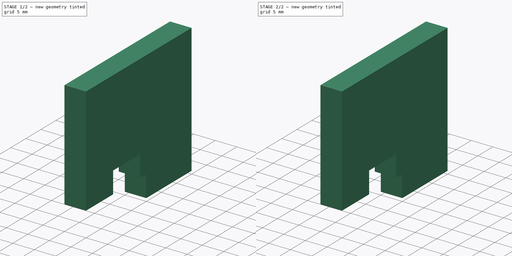
[diagram: build sequence overview — one tinted view per stage of 2, left to right]
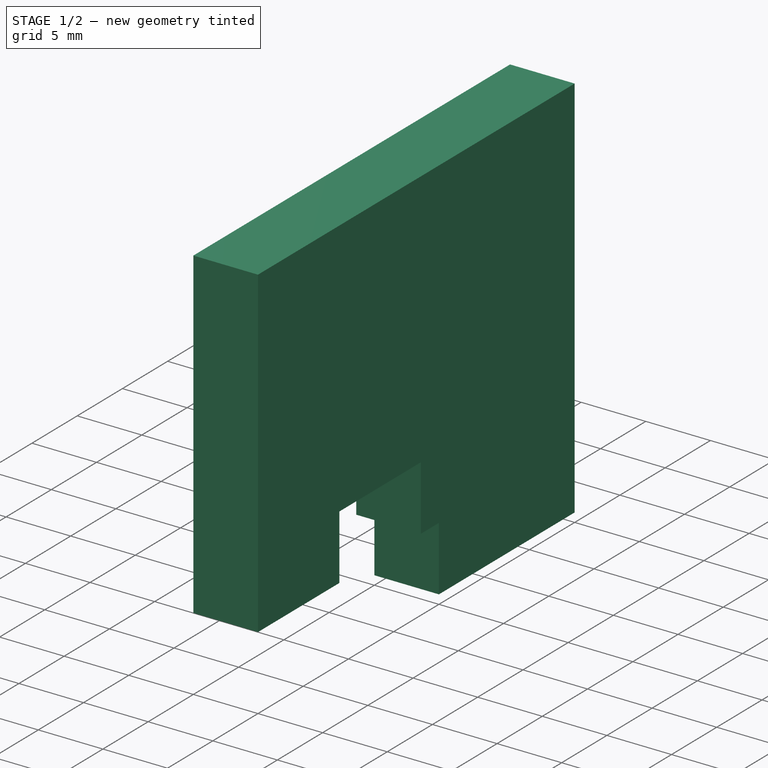
[diagram: stage 1 of 2 — iso view after this stage's code; geometry added in this stage tinted green]
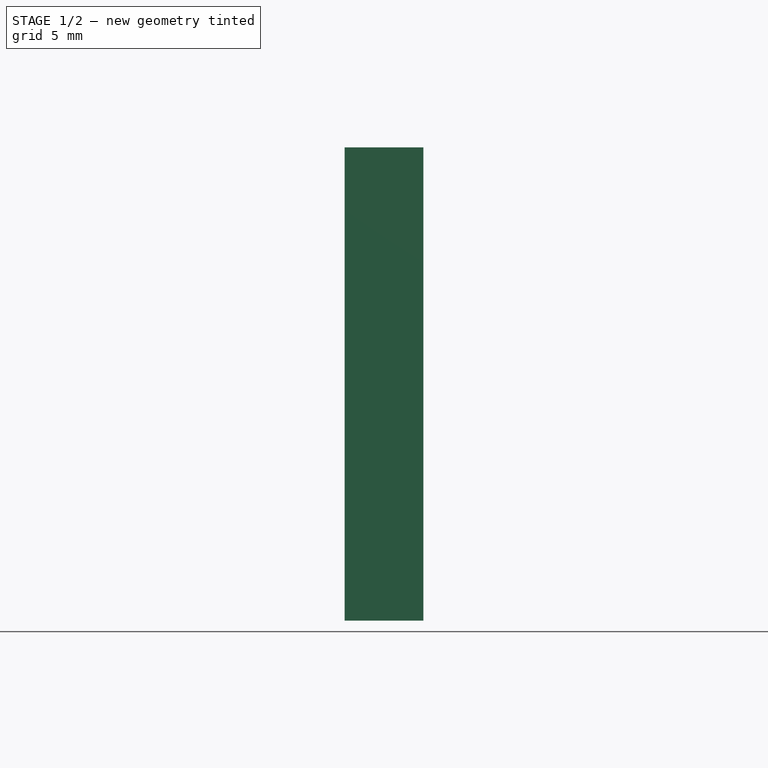
[diagram: stage 1 of 2 — front view after this stage's code; geometry added in this stage tinted green]
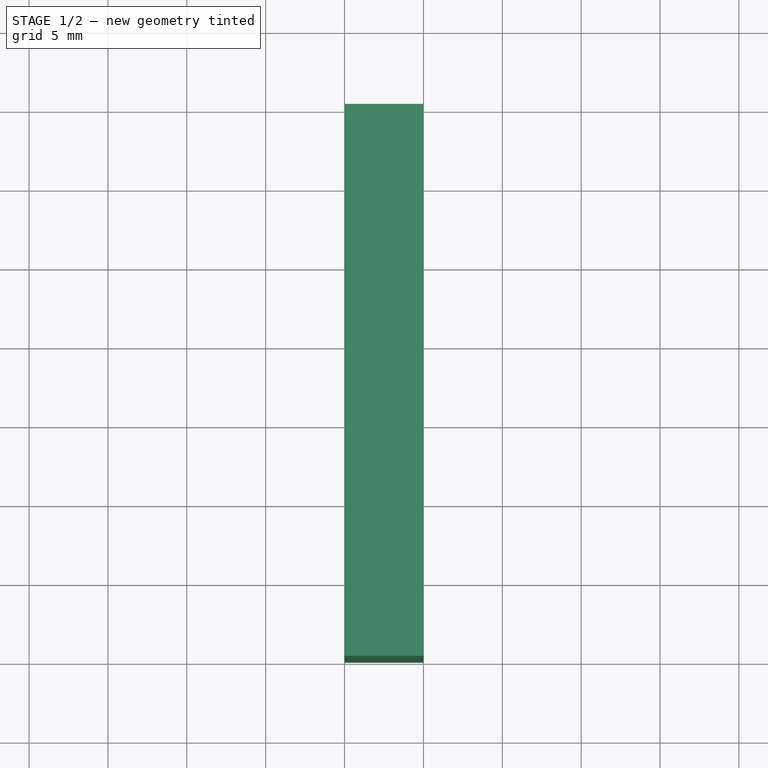
[diagram: stage 1 of 2 — top view after this stage's code; geometry added in this stage tinted green]
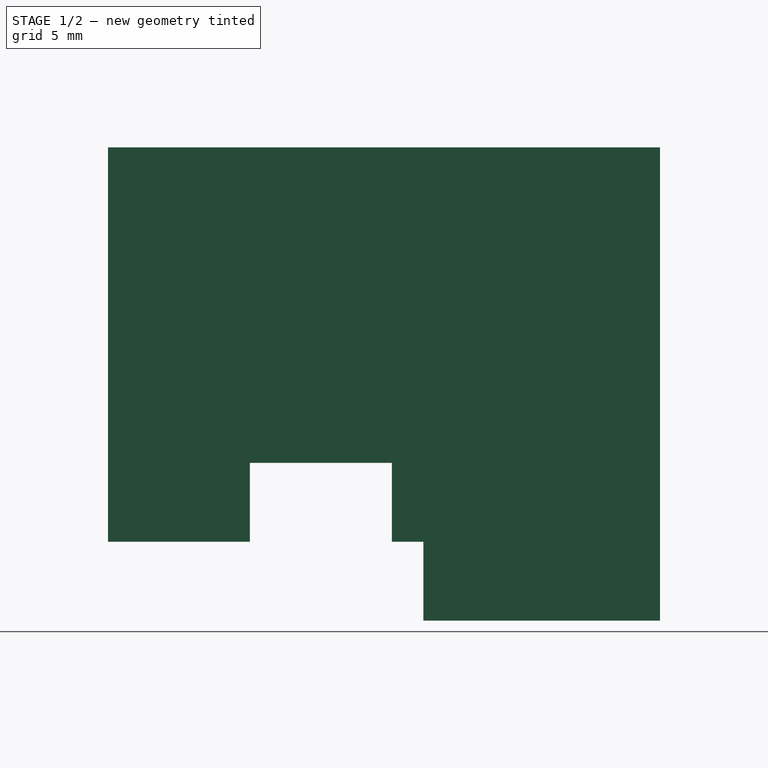
[diagram: stage 1 of 2 — right view after this stage's code; geometry added in this stage tinted green]
FCSTD DOCUMENT  (FreeCAD 0.19R24291 (Git))
Label: drzak_deklinacni_potenciometr
License: All rights reserved
LicenseURL: http://en.wikipedia.org/wiki/All_rights_reserved
objects: Sketcher::SketchObject×6, Part::Extrusion×2, Part::Cut×1, PartDesign::FeatureBase×1, PartDesign::ShapeBinder×1, PartDesign::Body×1, App::Part×1
note: 12 computed .brp shape members not serialized (recipe doc carries the construction recipe); baked Part::Feature solids carry a one-line shape summary decoded from their .brp

FEATURE [Sketcher::SketchObject] Sketch
  FullyConstrained = true
  MapMode = 5
  Support = -> [XY_Plane]
  sketch-geometry (6):
    g0: LineSegment StartX=0 StartY=0 StartZ=0 EndX=30 EndY=0 EndZ=0
    g1: LineSegment StartX=30 StartY=0 StartZ=0 EndX=30 EndY=20 EndZ=0
    g2: LineSegment StartX=30 StartY=20 StartZ=0 EndX=0 EndY=20 EndZ=0
    g3: LineSegment StartX=0 StartY=20 StartZ=0 EndX=0 EndY=0 EndZ=0
    g4: Circle CenterX=5 CenterY=14 CenterZ=0 NormalX=0 NormalY=0 NormalZ=1 AngleXU=0 Radius=2.5
    g5: Circle CenterX=25 CenterY=14 CenterZ=0 NormalX=0 NormalY=0 NormalZ=1 AngleXU=0 Radius=2.5
  constraints (17):
    c: Coincident(g0,g1)
    c: Coincident(g1,g2)
    c: Coincident(g2,g3)
    c: Coincident(g3,g0)
    c: Horizontal(g0)
    c: Horizontal(g2)
    c: Vertical(g1)
    c: Vertical(g3)
    c: Coincident(g0,g-1)
    c: DistanceX(g2,g2) = 30
    c: DistanceY(g1,g1) = 20
    c: Radius(g4) = 2.5
    c: Radius(g5) = 2.5
    c: DistanceX(g4,g5) = 20
    c: DistanceX(g2,g4) = 5
    c: DistanceY(g5,g1) = 6
    c: DistanceY(g4,g2) = 6
FEATURE [Part::Extrusion] Extrude
  Base = -> Sketch
  Dir = (0,0,1)
  DirMode = 2
  FaceMakerClass = Part::FaceMakerBullseye
  LengthFwd = 5
  LengthRev = 0
  Solid = true
  Symmetric = false
FEATURE [Sketcher::SketchObject] Sketch001
  FullyConstrained = false
  MapMode = 5
  Placement = pos=(0,0,5) rot=(0,0,1;0rad)
  Support = -> [Extrude]
  sketch-geometry (7):
    g0: LineSegment StartX=20.9635 StartY=13.8403 StartZ=0 EndX=22.7762 EndY=10.2746 EndZ=0
    g1: LineSegment StartX=22.7762 StartY=10.2746 StartZ=0 EndX=26.7705 EndY=10.0617 EndZ=0
    g2: LineSegment StartX=26.7705 StartY=10.0617 StartZ=0 EndX=28.9521 EndY=13.4144 EndZ=0
    g3: LineSegment StartX=28.9521 StartY=13.4144 StartZ=0 EndX=27.1394 EndY=16.98 EndZ=0
    g4: LineSegment StartX=27.1394 StartY=16.98 StartZ=0 EndX=23.145 EndY=17.193 EndZ=0
    g5: LineSegment StartX=23.145 StartY=17.193 StartZ=0 EndX=20.9635 EndY=13.8403 EndZ=0
    g6: Circle CenterX=24.9578 CenterY=13.6273 CenterZ=0 NormalX=0 NormalY=0 NormalZ=1 AngleXU=0 Radius=4
  constraints (14):
    c: Coincident(g0,g1)
    c: Coincident(g1,g2)
    c: Coincident(g2,g3)
    c: Coincident(g3,g4)
    c: Coincident(g4,g5)
    c: Coincident(g5,g0)
    c: Equal(g0, g1-g5) x5
    c: PointOnObject(g0,g6)
    c: PointOnObject(g1,g6)
    c: PointOnObject(g2,g6)
    c: PointOnObject(g3,g6)
    c: PointOnObject(g4,g6)
    c: PointOnObject(g5,g6)
    c: Radius(g6) = 4
FEATURE [Sketcher::SketchObject] Sketch002
  FullyConstrained = true
  MapMode = 5
  Placement = pos=(0,0,5) rot=(0,0,1;0rad)
  Support = -> [Extrude]
FEATURE [Sketcher::SketchObject] Sketch003  label="SchKolmo"
  ExternalGeometry = -> [Extrude]
  FullyConstrained = false
  MapMode = 5
  Placement = pos=(30,0,0) rot=(0.57735,0.57735,0.57735;2.0944rad)
  Support = -> [Extrude]
  sketch-geometry (11):
    g0: LineSegment StartX=0 StartY=5 StartZ=0 EndX=9 EndY=5 EndZ=0
    g1: LineSegment StartX=9 StartY=5 StartZ=0 EndX=9 EndY=10 EndZ=0
    g2: LineSegment StartX=0 StartY=30 StartZ=0 EndX=0 EndY=5 EndZ=0
    g3: LineSegment StartX=18 StartY=10 StartZ=0 EndX=9 EndY=10 EndZ=0
    g4: LineSegment StartX=35 StartY=30 StartZ=0 EndX=35 EndY=5 EndZ=0
    g5: LineSegment StartX=18 StartY=5 StartZ=0 EndX=18 EndY=10 EndZ=0
    g6: LineSegment StartX=0 StartY=30 StartZ=0 EndX=35 EndY=30 EndZ=0
    g7: LineSegment StartX=20 StartY=5 StartZ=0 EndX=20 EndY=0 EndZ=0
    g8: LineSegment StartX=20 StartY=0 StartZ=0 EndX=35 EndY=0 EndZ=0
    g9: LineSegment StartX=35 StartY=0 StartZ=0 EndX=35 EndY=5 EndZ=0
    g10: LineSegment StartX=18 StartY=5 StartZ=0 EndX=20 EndY=5 EndZ=0
  constraints (28):
    c: Coincident(g0,g1)
    c: Coincident(g2,g0)
    c: Horizontal(g0)
    c: Vertical(g1)
    c: Vertical(g2)
    c: Horizontal(g3)
    c: Vertical(g4)
    c: Vertical(g5)
    c: DistanceX(g-1,g0) = 0
    c: DistanceY(g2,g2) = 25
    c: DistanceY(g0,g3) = 5
    c: DistanceY(g5,g5) = 5
    c: Coincident(g3,g5)
    c: Coincident(g6,g2)
    c: Coincident(g6,g4)
    c: Horizontal(g6)
    c: DistanceX(g6,g6) = 35
    c: DistanceY(g-1,g0) = 5
    c: DistanceX(g0,g0) = 9
    c: Coincident(g1,g3)
    c: DistanceX(g3,g3) = 9
    c: Coincident(g7,g8)
    c: Coincident(g8,g9)
    c: Horizontal(g8)
    c: Vertical(g7)
    c: Vertical(g9)
    c: PointOnObject(g7,g-1)
    c: Coincident(g10,g5)
FEATURE [Part::Extrusion] Extrude003
  Base = -> Sketch003
  Dir = (1,0,0)
  DirMode = 2
  FaceMakerClass = Part::FaceMakerBullseye
  LengthFwd = 5
  LengthRev = 0
  Reversed = true
  Solid = true
  Symmetric = false
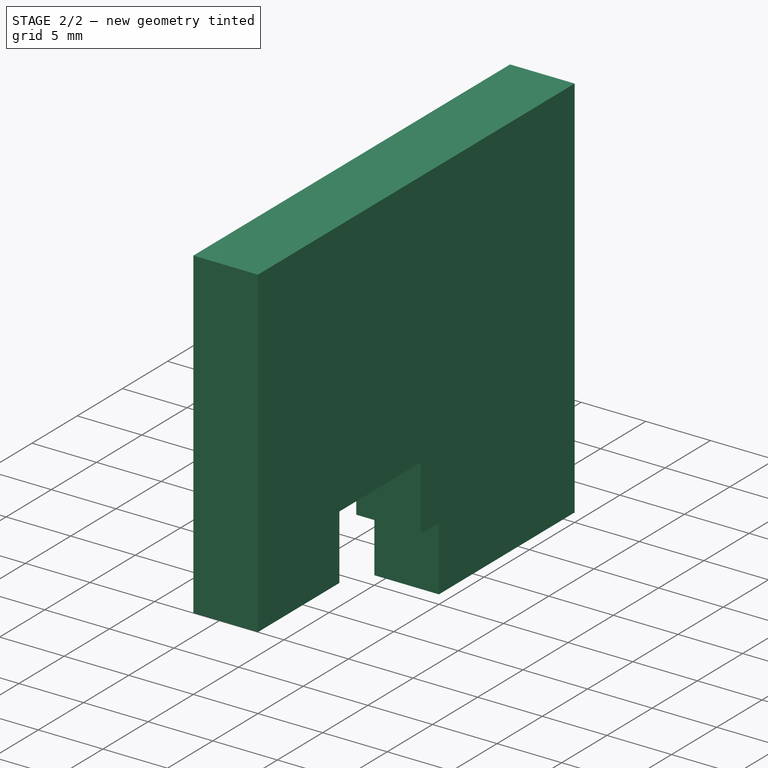
[diagram: stage 2 of 2 — iso view after this stage's code; geometry added in this stage tinted green]
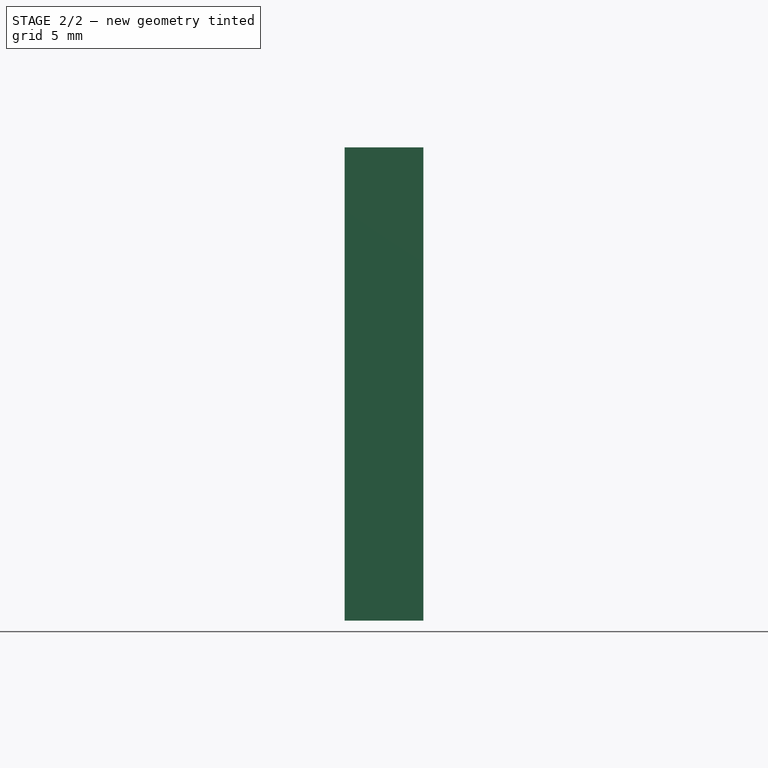
[diagram: stage 2 of 2 — front view after this stage's code; geometry added in this stage tinted green]
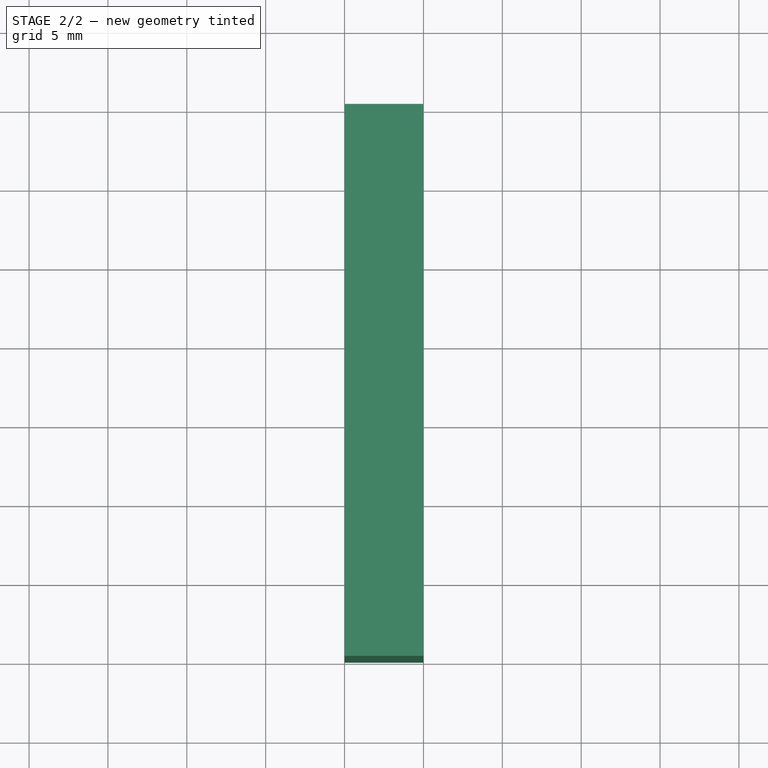
[diagram: stage 2 of 2 — top view after this stage's code; geometry added in this stage tinted green]
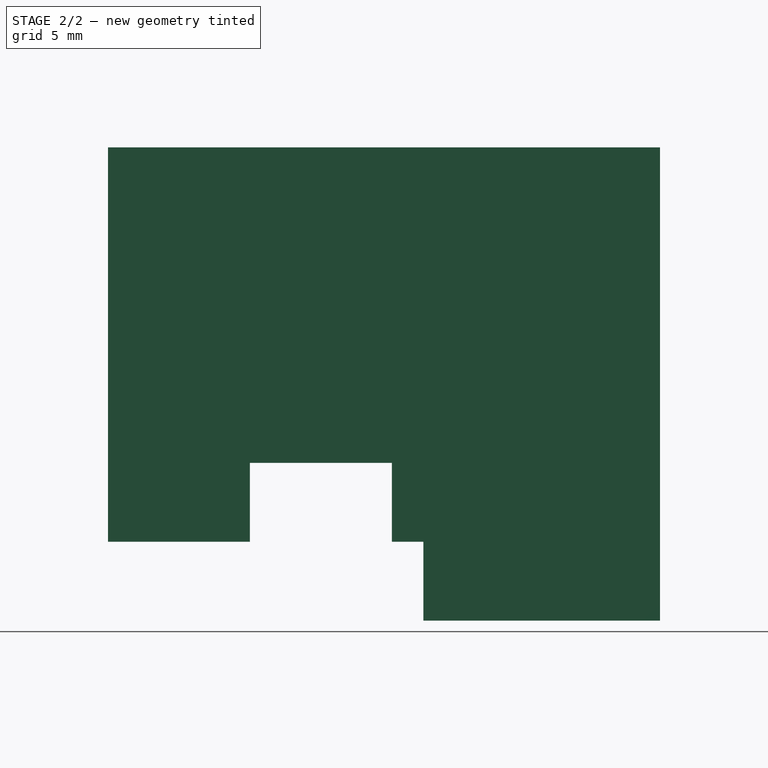
[diagram: stage 2 of 2 — right view after this stage's code; geometry added in this stage tinted green]
FEATURE [Sketcher::SketchObject] Sketch004  label="DiraPoten"
  ExternalGeometry = -> [Extrude]
  FullyConstrained = true
  MapMode = 5
  Placement = pos=(0,35,0) rot=(0,0.707107,0.707107;3.14159rad)
  Support = -> [Extrude003]
  sketch-geometry (1):
    g0: Circle CenterX=-35 CenterY=20 CenterZ=0 NormalX=0 NormalY=0 NormalZ=1 AngleXU=0 Radius=4
  constraints (3):
    c: DistanceY(g-3,g0) = 20
    c: Radius(g0) = 4
    c: DistanceX(g0,g-4) = 7.5
FEATURE [Part::Cut] Cut
  Base = -> Extrude003
FEATURE [PartDesign::FeatureBase] BaseFeature
  BaseFeature = -> Cut
FEATURE [PartDesign::ShapeBinder] CopyCut
  Placement = pos=(-5,0,0) rot=(0,0,1;0rad)
  TraceSupport = false
FEATURE [Sketcher::SketchObject] Sketch005
  FullyConstrained = false
  MapMode = 5
  Placement = pos=(25,0,0) rot=(0.57735,-0.57735,-0.57735;2.0944rad)
  Support = -> [CopyCut]
  sketch-geometry (1):
    g0: Circle CenterX=-26.0763 CenterY=22.7212 CenterZ=0 NormalX=0 NormalY=0 NormalZ=1 AngleXU=0 Radius=4.5
  constraints (1):
    c: Radius(g0) = 4.5
FEATURE [PartDesign::Body] Body
  BaseFeature = -> Cut
  Group = -> [BaseFeature,CopyCut,Sketch005]
  Origin = -> Origin
  Tip = -> BaseFeature
FEATURE [App::Part] Part
  Group = -> [Extrude,Cut,Extrude003,Sketch003,Sketch004,Sketch,Sketch001,Sketch002,Body]
  Origin = -> Origin001
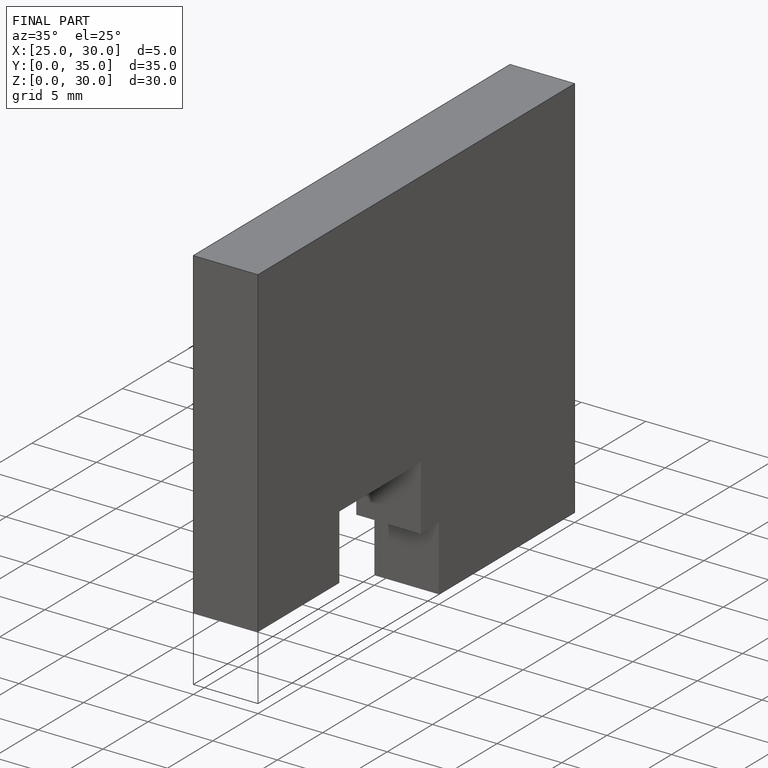
[diagram: finished part — iso view with bounding-box wireframe]
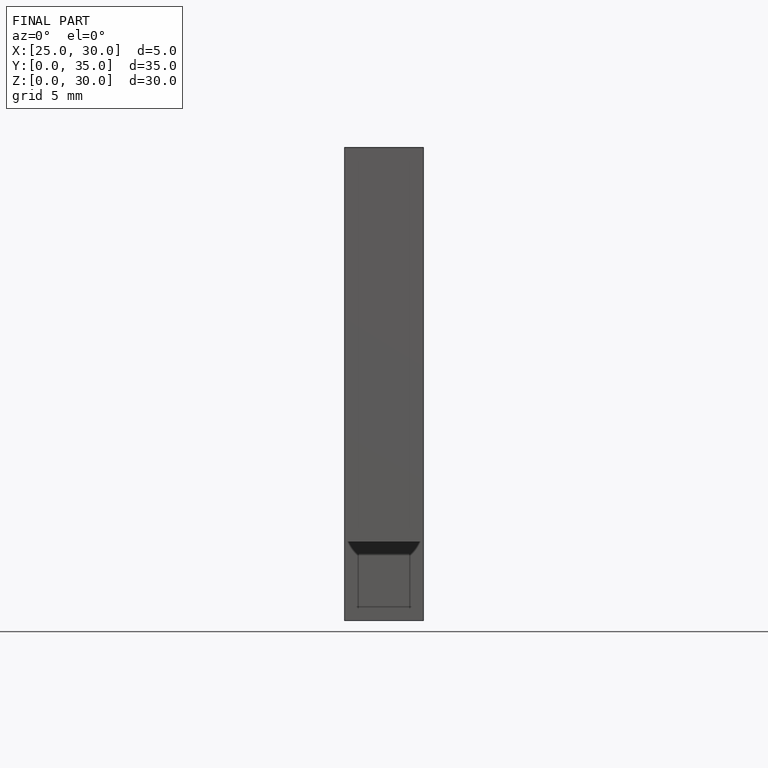
[diagram: finished part — front view with bounding-box wireframe]
